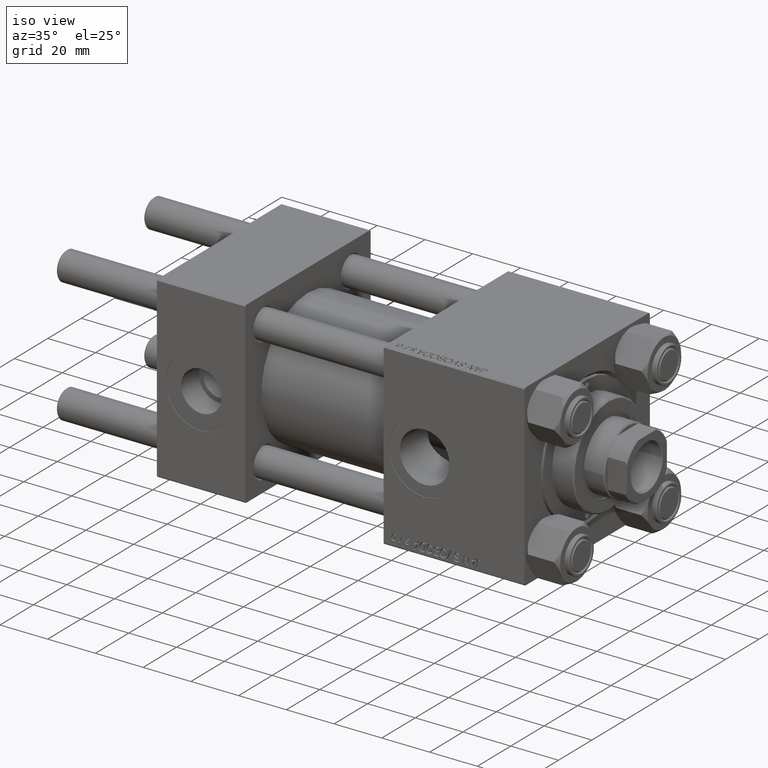
[diagram: clean part render]
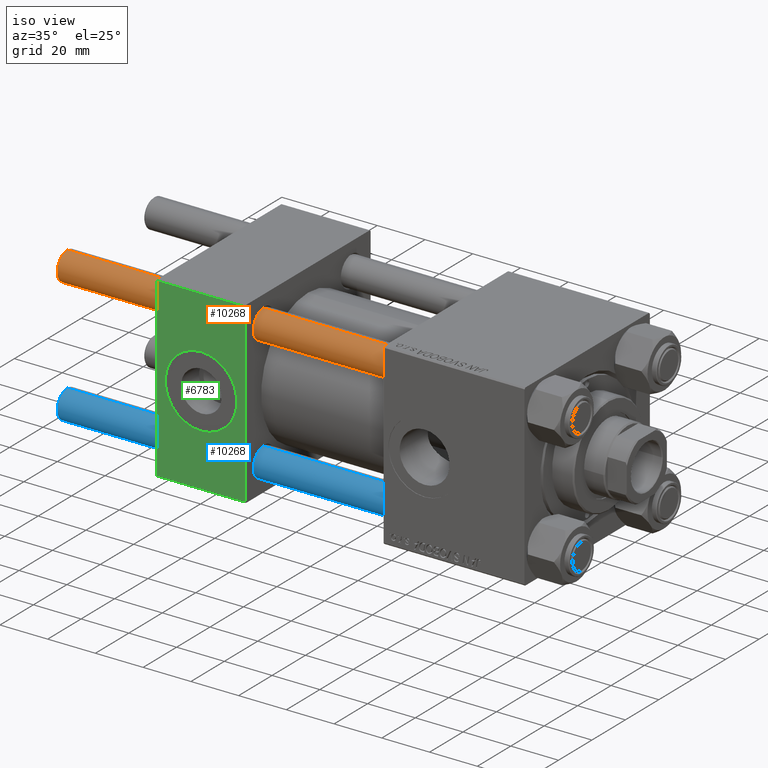
[diagram: same view with three faces highlighted in distinct colors, each labeled with its STEP entity id]
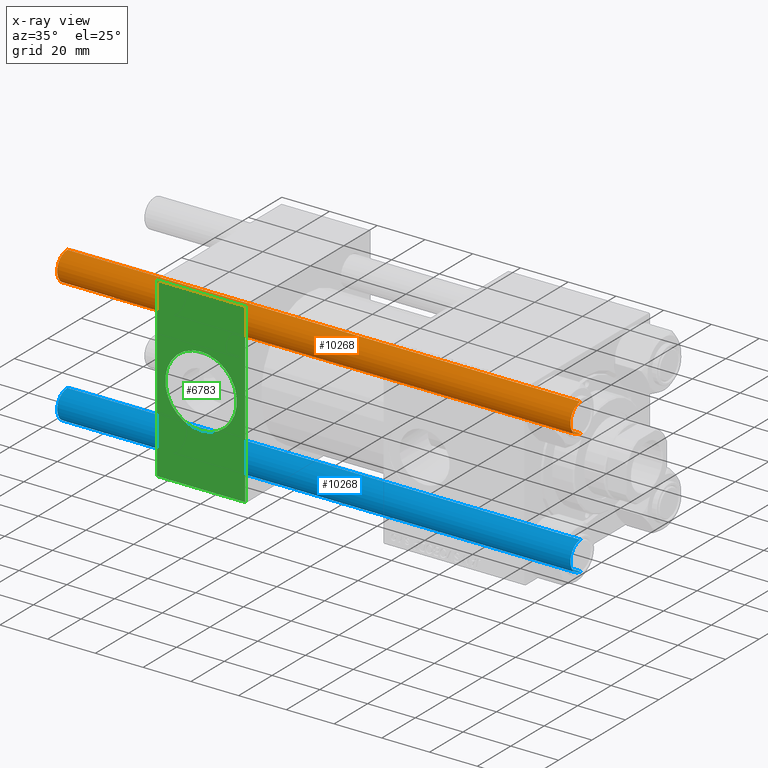
[diagram: x-ray of the same camera — body ghosted, the three highlighted faces saturated]
A machine part, iso view with three faces highlighted in distinct colors.
The next image is the same camera in x-ray (body ghosted, the three faces saturated) — at least one of them is partly hidden behind the body in this view.
Their STEP definitions:

[orange] entity #10268 — the highlighted cylindrical surface (edge-blend (fillet) strip) has radius 6 mm, axis along (1, -0, 0).
#1800 = ORIENTED_EDGE ( 'NONE', *, *, #48629, .T. ) ;
#4151 = CARTESIAN_POINT ( 'NONE',  ( -6.000000000000000888, 0.000000000000000000, 215.5000000000000284 ) ) ;
#4187 = EDGE_CURVE ( 'NONE', #13499, #37798, #7149, .T. ) ;
#5661 = DIRECTION ( 'NONE',  ( 0.000000000000000000, 0.000000000000000000, -1.000000000000000000 ) ) ;
#5983 = CIRCLE ( 'NONE', #32852, 6.000000000000000888 ) ;
#7149 = CIRCLE ( 'NONE', #26499, 6.000000000000000888 ) ;
#7752 = EDGE_CURVE ( 'NONE', #45538, #13499, #38087, .T. ) ;
#8409 = CARTESIAN_POINT ( 'NONE',  ( -6.000000000000000888, 0.000000000000000000, 216.0000000000000000 ) ) ;
#9323 = ORIENTED_EDGE ( 'NONE', *, *, #46138, .F. ) ;
#10268 = ADVANCED_FACE ( 'NONE', ( #25254 ), #48940, .T. ) ;
#10699 = CARTESIAN_POINT ( 'NONE',  ( 6.000000000000000888, 7.347880794884120722E-16, 216.0000000000000000 ) ) ;
#11372 = CARTESIAN_POINT ( 'NONE',  ( 6.000000000000000888, 7.347880794884120722E-16, 215.5000000000000284 ) ) ;
#12030 = DIRECTION ( 'NONE',  ( 1.000000000000000000, 0.000000000000000000, 0.000000000000000000 ) ) ;
#12248 = EDGE_LOOP ( 'NONE', ( #1800, #44977, #39899, #9323 ) ) ;
#13401 = DIRECTION ( 'NONE',  ( -0.000000000000000000, -0.000000000000000000, -1.000000000000000000 ) ) ;
#13499 = VERTEX_POINT ( 'NONE', #48156 ) ;
#19126 = AXIS2_PLACEMENT_3D ( 'NONE', #33399, #13401, #41296 ) ;
#24720 = LINE ( 'NONE', #8409, #50429 ) ;
#25254 = FACE_OUTER_BOUND ( 'NONE', #12248, .T. ) ;
#26499 = AXIS2_PLACEMENT_3D ( 'NONE', #50730, #28079, #12030 ) ;
#28079 = DIRECTION ( 'NONE',  ( -0.000000000000000000, -0.000000000000000000, 1.000000000000000000 ) ) ;
#28282 = VECTOR ( 'NONE', #46754, 1000.000000000000000 ) ;
#30122 = CARTESIAN_POINT ( 'NONE',  ( 0.000000000000000000, 0.000000000000000000, 215.5000000000000284 ) ) ;
#32791 = CARTESIAN_POINT ( 'NONE',  ( -6.000000000000000888, 0.000000000000000000, 0.5000000000000004441 ) ) ;
#32852 = AXIS2_PLACEMENT_3D ( 'NONE', #30122, #5661, #41712 ) ;
#33399 = CARTESIAN_POINT ( 'NONE',  ( 0.000000000000000000, 0.000000000000000000, 216.0000000000000000 ) ) ;
#37798 = VERTEX_POINT ( 'NONE', #32791 ) ;
#38087 = LINE ( 'NONE', #10699, #28282 ) ;
#39899 = ORIENTED_EDGE ( 'NONE', *, *, #4187, .T. ) ;
#40921 = VERTEX_POINT ( 'NONE', #4151 ) ;
#41296 = DIRECTION ( 'NONE',  ( -1.000000000000000000, 0.000000000000000000, 0.000000000000000000 ) ) ;
#41712 = DIRECTION ( 'NONE',  ( 1.000000000000000000, 0.000000000000000000, 0.000000000000000000 ) ) ;
#44198 = DIRECTION ( 'NONE',  ( -0.000000000000000000, -0.000000000000000000, -1.000000000000000000 ) ) ;
#44977 = ORIENTED_EDGE ( 'NONE', *, *, #7752, .T. ) ;
#45538 = VERTEX_POINT ( 'NONE', #11372 ) ;
#46138 = EDGE_CURVE ( 'NONE', #40921, #37798, #24720, .T. ) ;
#46754 = DIRECTION ( 'NONE',  ( -0.000000000000000000, -0.000000000000000000, -1.000000000000000000 ) ) ;
#48156 = CARTESIAN_POINT ( 'NONE',  ( 6.000000000000000888, 7.347880794884120722E-16, 0.5000000000000004441 ) ) ;
#48629 = EDGE_CURVE ( 'NONE', #40921, #45538, #5983, .T. ) ;
#48940 = CYLINDRICAL_SURFACE ( 'NONE', #19126, 6.000000000000000888 ) ;
#50429 = VECTOR ( 'NONE', #44198, 1000.000000000000000 ) ;
#50730 = CARTESIAN_POINT ( 'NONE',  ( 0.000000000000000000, 0.000000000000000000, 0.5000000000000004441 ) ) ;

[blue] entity #10268 — the highlighted cylindrical surface (edge-blend (fillet) strip) has radius 6 mm, axis along (-1, 0, 0).
#1800 = ORIENTED_EDGE ( 'NONE', *, *, #48629, .T. ) ;
#4151 = CARTESIAN_POINT ( 'NONE',  ( -6.000000000000000888, 0.000000000000000000, 215.5000000000000284 ) ) ;
#4187 = EDGE_CURVE ( 'NONE', #13499, #37798, #7149, .T. ) ;
#5661 = DIRECTION ( 'NONE',  ( 0.000000000000000000, 0.000000000000000000, -1.000000000000000000 ) ) ;
#5983 = CIRCLE ( 'NONE', #32852, 6.000000000000000888 ) ;
#7149 = CIRCLE ( 'NONE', #26499, 6.000000000000000888 ) ;
#7752 = EDGE_CURVE ( 'NONE', #45538, #13499, #38087, .T. ) ;
#8409 = CARTESIAN_POINT ( 'NONE',  ( -6.000000000000000888, 0.000000000000000000, 216.0000000000000000 ) ) ;
#9323 = ORIENTED_EDGE ( 'NONE', *, *, #46138, .F. ) ;
#10268 = ADVANCED_FACE ( 'NONE', ( #25254 ), #48940, .T. ) ;
#10699 = CARTESIAN_POINT ( 'NONE',  ( 6.000000000000000888, 7.347880794884120722E-16, 216.0000000000000000 ) ) ;
#11372 = CARTESIAN_POINT ( 'NONE',  ( 6.000000000000000888, 7.347880794884120722E-16, 215.5000000000000284 ) ) ;
#12030 = DIRECTION ( 'NONE',  ( 1.000000000000000000, 0.000000000000000000, 0.000000000000000000 ) ) ;
#12248 = EDGE_LOOP ( 'NONE', ( #1800, #44977, #39899, #9323 ) ) ;
#13401 = DIRECTION ( 'NONE',  ( -0.000000000000000000, -0.000000000000000000, -1.000000000000000000 ) ) ;
#13499 = VERTEX_POINT ( 'NONE', #48156 ) ;
#19126 = AXIS2_PLACEMENT_3D ( 'NONE', #33399, #13401, #41296 ) ;
#24720 = LINE ( 'NONE', #8409, #50429 ) ;
#25254 = FACE_OUTER_BOUND ( 'NONE', #12248, .T. ) ;
#26499 = AXIS2_PLACEMENT_3D ( 'NONE', #50730, #28079, #12030 ) ;
#28079 = DIRECTION ( 'NONE',  ( -0.000000000000000000, -0.000000000000000000, 1.000000000000000000 ) ) ;
#28282 = VECTOR ( 'NONE', #46754, 1000.000000000000000 ) ;
#30122 = CARTESIAN_POINT ( 'NONE',  ( 0.000000000000000000, 0.000000000000000000, 215.5000000000000284 ) ) ;
#32791 = CARTESIAN_POINT ( 'NONE',  ( -6.000000000000000888, 0.000000000000000000, 0.5000000000000004441 ) ) ;
#32852 = AXIS2_PLACEMENT_3D ( 'NONE', #30122, #5661, #41712 ) ;
#33399 = CARTESIAN_POINT ( 'NONE',  ( 0.000000000000000000, 0.000000000000000000, 216.0000000000000000 ) ) ;
#37798 = VERTEX_POINT ( 'NONE', #32791 ) ;
#38087 = LINE ( 'NONE', #10699, #28282 ) ;
#39899 = ORIENTED_EDGE ( 'NONE', *, *, #4187, .T. ) ;
#40921 = VERTEX_POINT ( 'NONE', #4151 ) ;
#41296 = DIRECTION ( 'NONE',  ( -1.000000000000000000, 0.000000000000000000, 0.000000000000000000 ) ) ;
#41712 = DIRECTION ( 'NONE',  ( 1.000000000000000000, 0.000000000000000000, 0.000000000000000000 ) ) ;
#44198 = DIRECTION ( 'NONE',  ( -0.000000000000000000, -0.000000000000000000, -1.000000000000000000 ) ) ;
#44977 = ORIENTED_EDGE ( 'NONE', *, *, #7752, .T. ) ;
#45538 = VERTEX_POINT ( 'NONE', #11372 ) ;
#46138 = EDGE_CURVE ( 'NONE', #40921, #37798, #24720, .T. ) ;
#46754 = DIRECTION ( 'NONE',  ( -0.000000000000000000, -0.000000000000000000, -1.000000000000000000 ) ) ;
#48156 = CARTESIAN_POINT ( 'NONE',  ( 6.000000000000000888, 7.347880794884120722E-16, 0.5000000000000004441 ) ) ;
#48629 = EDGE_CURVE ( 'NONE', #40921, #45538, #5983, .T. ) ;
#48940 = CYLINDRICAL_SURFACE ( 'NONE', #19126, 6.000000000000000888 ) ;
#50429 = VECTOR ( 'NONE', #44198, 1000.000000000000000 ) ;
#50730 = CARTESIAN_POINT ( 'NONE',  ( 0.000000000000000000, 0.000000000000000000, 0.5000000000000004441 ) ) ;

[green] entity #6783 — the highlighted planar face has unit normal (0, 1, 0).
#426 = VERTEX_POINT ( 'NONE', #12648 ) ;
#2840 = PLANE ( 'NONE',  #31610 ) ;
#6783 = ADVANCED_FACE ( 'NONE', ( #19427, #31265 ), #2840, .F. ) ;
#7655 = DIRECTION ( 'NONE',  ( 1.000000000000000000, 0.000000000000000000, 0.000000000000000000 ) ) ;
#8288 = EDGE_CURVE ( 'NONE', #40669, #21433, #19922, .T. ) ;
#8438 = CARTESIAN_POINT ( 'NONE',  ( 37.00000000000000000, -37.50000000000000000, -37.00000000000003553 ) ) ;
#11093 = ORIENTED_EDGE ( 'NONE', *, *, #16359, .T. ) ;
#11752 = CARTESIAN_POINT ( 'NONE',  ( 18.50000000000000000, -37.50000000000000711, -3.469446951953614978E-15 ) ) ;
#12648 = CARTESIAN_POINT ( 'NONE',  ( 37.00000000000000000, -37.50000000000000711, 36.99999999999999289 ) ) ;
#14438 = VERTEX_POINT ( 'NONE', #41940 ) ;
#15440 = CARTESIAN_POINT ( 'NONE',  ( 37.00000000000000000, -37.50000000000000711, 37.49999999999999289 ) ) ;
#16217 = CARTESIAN_POINT ( 'NONE',  ( 0.000000000000000000, -37.50000000000000000, -37.00000000000003553 ) ) ;
#16359 = EDGE_CURVE ( 'NONE', #44153, #14438, #48956, .T. ) ;
#16843 = CARTESIAN_POINT ( 'NONE',  ( 18.50000000000000355, -37.50000000000000711, 14.99999999999999822 ) ) ;
#18227 = DIRECTION ( 'NONE',  ( 0.000000000000000000, -1.000000000000000000, -8.673617379884036705E-17 ) ) ;
#18894 = CARTESIAN_POINT ( 'NONE',  ( 37.00000000000000000, -37.50000000000000711, 37.49999999999999289 ) ) ;
#19427 = FACE_BOUND ( 'NONE', #44575, .T. ) ;
#19922 = CIRCLE ( 'NONE', #50169, 15.00000000000000178 ) ;
#21433 = VERTEX_POINT ( 'NONE', #45142 ) ;
#21735 = ORIENTED_EDGE ( 'NONE', *, *, #48410, .F. ) ;
#22115 = CARTESIAN_POINT ( 'NONE',  ( 0.000000000000000000, -37.50000000000000711, 37.49999999999999289 ) ) ;
#22765 = CIRCLE ( 'NONE', #28676, 15.00000000000000178 ) ;
#23340 = LINE ( 'NONE', #15440, #30140 ) ;
#25489 = EDGE_CURVE ( 'NONE', #426, #42308, #47260, .T. ) ;
#27247 = CARTESIAN_POINT ( 'NONE',  ( 37.00000000000000000, -37.50000000000000711, 36.99999999999999289 ) ) ;
#27582 = DIRECTION ( 'NONE',  ( -0.000000000000000000, 1.000000000000000000, 9.251858538542971581E-17 ) ) ;
#27799 = DIRECTION ( 'NONE',  ( 0.000000000000000000, 0.000000000000000000, -1.000000000000000000 ) ) ;
#28320 = DIRECTION ( 'NONE',  ( 0.000000000000000000, -1.000000000000000000, -8.673617379884036705E-17 ) ) ;
#28676 = AXIS2_PLACEMENT_3D ( 'NONE', #11752, #28320, #27799 ) ;
#30140 = VECTOR ( 'NONE', #35190, 1000.000000000000000 ) ;
#31000 = EDGE_LOOP ( 'NONE', ( #48325, #11093, #49208, #36544 ) ) ;
#31265 = FACE_OUTER_BOUND ( 'NONE', #31000, .T. ) ;
#31610 = AXIS2_PLACEMENT_3D ( 'NONE', #18894, #27582, #34965 ) ;
#33536 = VECTOR ( 'NONE', #42892, 1000.000000000000000 ) ;
#34965 = DIRECTION ( 'NONE',  ( 0.000000000000000000, -9.251858538542971581E-17, 1.000000000000000000 ) ) ;
#35190 = DIRECTION ( 'NONE',  ( 0.000000000000000000, 9.251858538542971581E-17, -1.000000000000000000 ) ) ;
#35683 = DIRECTION ( 'NONE',  ( -1.000000000000000000, 0.000000000000000000, 0.000000000000000000 ) ) ;
#36544 = ORIENTED_EDGE ( 'NONE', *, *, #25489, .T. ) ;
#39718 = EDGE_CURVE ( 'NONE', #426, #14438, #23340, .T. ) ;
#40269 = EDGE_CURVE ( 'NONE', #42308, #44153, #51058, .T. ) ;
#40669 = VERTEX_POINT ( 'NONE', #16843 ) ;
#41940 = CARTESIAN_POINT ( 'NONE',  ( 37.00000000000000000, -37.50000000000000000, -37.00000000000003553 ) ) ;
#42308 = VERTEX_POINT ( 'NONE', #51157 ) ;
#42640 = ORIENTED_EDGE ( 'NONE', *, *, #8288, .F. ) ;
#42892 = DIRECTION ( 'NONE',  ( 0.000000000000000000, 9.251858538542971581E-17, -1.000000000000000000 ) ) ;
#43586 = VECTOR ( 'NONE', #7655, 1000.000000000000000 ) ;
#44153 = VERTEX_POINT ( 'NONE', #16217 ) ;
#44575 = EDGE_LOOP ( 'NONE', ( #21735, #42640 ) ) ;
#45142 = CARTESIAN_POINT ( 'NONE',  ( 18.50000000000000000, -37.50000000000000711, -15.00000000000000533 ) ) ;
#46393 = DIRECTION ( 'NONE',  ( 0.000000000000000000, 0.000000000000000000, -1.000000000000000000 ) ) ;
#47260 = LINE ( 'NONE', #27247, #50812 ) ;
#48325 = ORIENTED_EDGE ( 'NONE', *, *, #40269, .T. ) ;
#48410 = EDGE_CURVE ( 'NONE', #21433, #40669, #22765, .T. ) ;
#48793 = CARTESIAN_POINT ( 'NONE',  ( 18.50000000000000000, -37.50000000000000711, -3.469446951953614978E-15 ) ) ;
#48956 = LINE ( 'NONE', #8438, #43586 ) ;
#49208 = ORIENTED_EDGE ( 'NONE', *, *, #39718, .F. ) ;
#50169 = AXIS2_PLACEMENT_3D ( 'NONE', #48793, #18227, #46393 ) ;
#50812 = VECTOR ( 'NONE', #35683, 1000.000000000000000 ) ;
#51058 = LINE ( 'NONE', #22115, #33536 ) ;
#51157 = CARTESIAN_POINT ( 'NONE',  ( 0.000000000000000000, -37.50000000000000711, 36.99999999999999289 ) ) ;